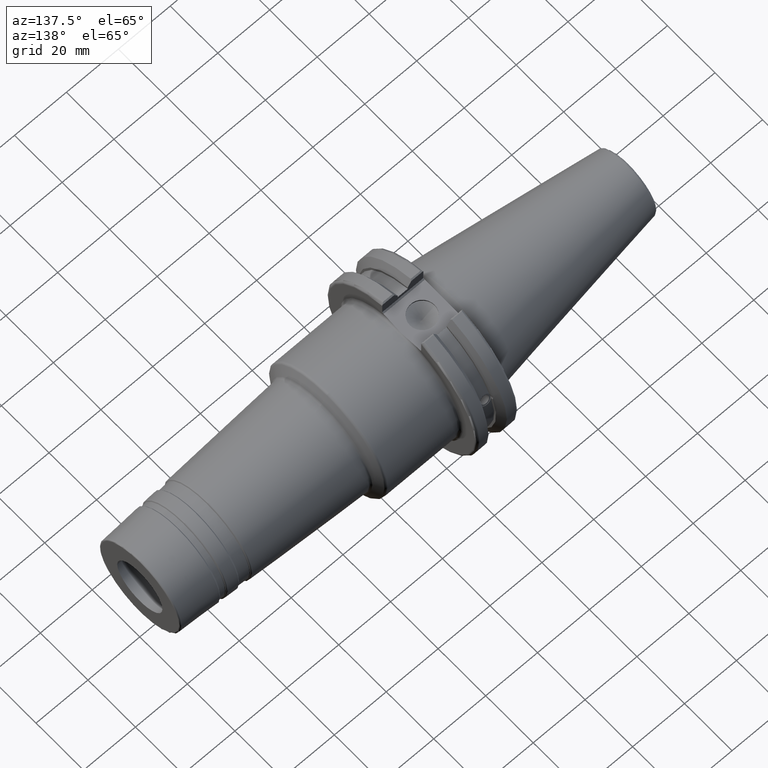
[diagram: clean part render]
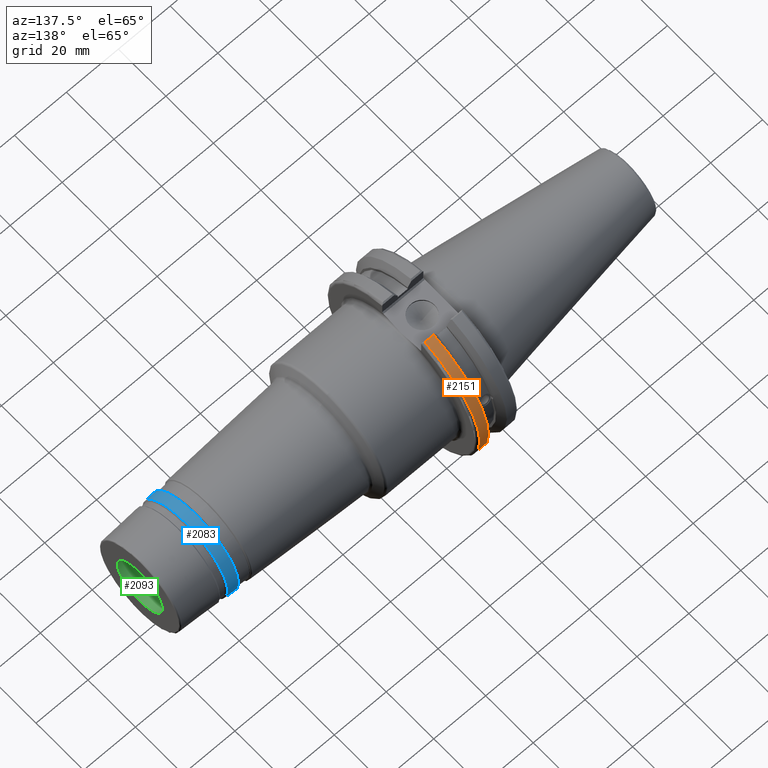
[diagram: same view with three faces highlighted in distinct colors, each labeled with its STEP entity id]
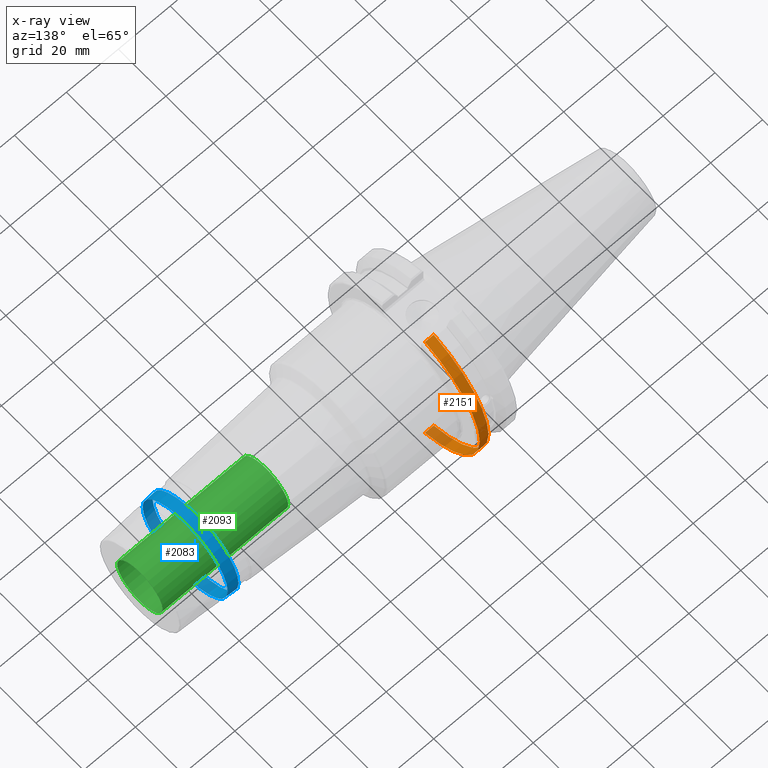
[diagram: x-ray of the same camera — body ghosted, the three highlighted faces saturated]
A machine part, auxiliary view with three faces highlighted in distinct colors.
The next image is the same camera in x-ray (body ghosted, the three faces saturated) — at least one of them is partly hidden behind the body in this view.
Their STEP definitions:

[orange] entity #2151 — the highlighted cylindrical surface (partial cylindrical patch) has radius 31.75 mm, axis along (1, 0, 0).
#262=FACE_OUTER_BOUND('',#381,.T.);
#381=EDGE_LOOP('',(#1941,#1942,#1943,#1944));
#467=LINE('',#3969,#566);
#493=LINE('',#4165,#592);
#566=VECTOR('',#3012,10.);
#592=VECTOR('',#3108,10.);
#742=CIRCLE('',#2416,31.75);
#757=CIRCLE('',#2454,31.75);
#967=VERTEX_POINT('',#3943);
#968=VERTEX_POINT('',#3952);
#970=VERTEX_POINT('',#3965);
#1003=VERTEX_POINT('',#4164);
#1268=EDGE_CURVE('',#967,#968,#742,.T.);
#1272=EDGE_CURVE('',#970,#967,#467,.T.);
#1330=EDGE_CURVE('',#968,#1003,#493,.T.);
#1332=EDGE_CURVE('',#970,#1003,#757,.T.);
#1941=ORIENTED_EDGE('',*,*,#1268,.F.);
#1942=ORIENTED_EDGE('',*,*,#1272,.F.);
#1943=ORIENTED_EDGE('',*,*,#1332,.T.);
#1944=ORIENTED_EDGE('',*,*,#1330,.F.);
#2057=CYLINDRICAL_SURFACE('',#2453,31.75);
#2151=ADVANCED_FACE('',(#262),#2057,.T.);
#2416=AXIS2_PLACEMENT_3D('',#3953,#3007,#3008);
#2453=AXIS2_PLACEMENT_3D('',#4169,#3109,#3110);
#2454=AXIS2_PLACEMENT_3D('',#4170,#3111,#3112);
#3007=DIRECTION('center_axis',(1.,0.,0.));
#3008=DIRECTION('ref_axis',(0.,1.,-6.12323399573677E-17));
#3012=DIRECTION('',(1.,0.,0.));
#3108=DIRECTION('',(-1.,0.,0.));
#3109=DIRECTION('center_axis',(1.,0.,0.));
#3110=DIRECTION('ref_axis',(0.,1.,0.));
#3111=DIRECTION('center_axis',(1.,0.,0.));
#3112=DIRECTION('ref_axis',(0.,0.,-1.));
#3943=CARTESIAN_POINT('',(18.05,8.67204822802685,-30.5427254764662));
#3952=CARTESIAN_POINT('',(18.05,8.67204822802685,30.5427254764662));
#3953=CARTESIAN_POINT('Origin',(18.05,0.,0.));
#3965=CARTESIAN_POINT('',(14.6602667690756,8.67204822802685,-30.5427254764662));
#3969=CARTESIAN_POINT('',(16.8551333845378,8.67204822802685,-30.5427254764662));
#4164=CARTESIAN_POINT('',(14.6602667690756,8.67204822802685,30.5427254764662));
#4165=CARTESIAN_POINT('',(16.8551333845378,8.67204822802685,30.5427254764662));
#4169=CARTESIAN_POINT('Origin',(16.8551333845378,0.,0.));
#4170=CARTESIAN_POINT('Origin',(14.6602667690756,0.,0.));

[blue] entity #2083 — the highlighted conical surface has half-angle 3 deg.
#111=CONICAL_SURFACE('',#2278,18.0202570867172,0.0523598775598298);
#194=FACE_OUTER_BOUND('',#303,.T.);
#303=EDGE_LOOP('',(#1501,#1502,#1503,#1504,#1505,#1506,#1507,#1508));
#414=LINE('',#3444,#513);
#513=VECTOR('',#2681,18.0202570867172);
#665=CIRCLE('',#2275,17.9166117566925);
#666=CIRCLE('',#2276,17.9166117566925);
#667=CIRCLE('',#2277,17.9166117566925);
#668=CIRCLE('',#2279,18.1239024167419);
#669=CIRCLE('',#2280,18.1239024167419);
#670=CIRCLE('',#2281,18.1239024167419);
#837=VERTEX_POINT('',#3435);
#838=VERTEX_POINT('',#3437);
#839=VERTEX_POINT('',#3439);
#840=VERTEX_POINT('',#3443);
#841=VERTEX_POINT('',#3445);
#842=VERTEX_POINT('',#3447);
#1097=EDGE_CURVE('',#837,#838,#665,.T.);
#1098=EDGE_CURVE('',#838,#839,#666,.T.);
#1099=EDGE_CURVE('',#839,#837,#667,.T.);
#1100=EDGE_CURVE('',#838,#840,#414,.T.);
#1101=EDGE_CURVE('',#841,#840,#668,.T.);
#1102=EDGE_CURVE('',#842,#841,#669,.T.);
#1103=EDGE_CURVE('',#840,#842,#670,.T.);
#1501=ORIENTED_EDGE('',*,*,#1099,.F.);
#1502=ORIENTED_EDGE('',*,*,#1098,.F.);
#1503=ORIENTED_EDGE('',*,*,#1100,.T.);
#1504=ORIENTED_EDGE('',*,*,#1101,.F.);
#1505=ORIENTED_EDGE('',*,*,#1102,.F.);
#1506=ORIENTED_EDGE('',*,*,#1103,.F.);
#1507=ORIENTED_EDGE('',*,*,#1100,.F.);
#1508=ORIENTED_EDGE('',*,*,#1097,.F.);
#2083=ADVANCED_FACE('',(#194),#111,.T.);
#2275=AXIS2_PLACEMENT_3D('',#3438,#2673,#2674);
#2276=AXIS2_PLACEMENT_3D('',#3440,#2675,#2676);
#2277=AXIS2_PLACEMENT_3D('',#3441,#2677,#2678);
#2278=AXIS2_PLACEMENT_3D('',#3442,#2679,#2680);
#2279=AXIS2_PLACEMENT_3D('',#3446,#2682,#2683);
#2280=AXIS2_PLACEMENT_3D('',#3448,#2684,#2685);
#2281=AXIS2_PLACEMENT_3D('',#3449,#2686,#2687);
#2673=DIRECTION('center_axis',(1.,0.,0.));
#2674=DIRECTION('ref_axis',(0.,-1.,3.06161699786838E-17));
#2675=DIRECTION('center_axis',(1.,0.,0.));
#2676=DIRECTION('ref_axis',(0.,-1.,3.06161699786838E-17));
#2677=DIRECTION('center_axis',(1.,0.,0.));
#2678=DIRECTION('ref_axis',(0.,-1.,3.06161699786838E-17));
#2679=DIRECTION('center_axis',(-1.,0.,0.));
#2680=DIRECTION('ref_axis',(0.,1.,0.));
#2681=DIRECTION('',(-0.998629534754574,-0.0523359562429437,-6.4093061293237E-18));
#2682=DIRECTION('center_axis',(-1.,0.,0.));
#2683=DIRECTION('ref_axis',(0.,-1.,3.06161699786838E-17));
#2684=DIRECTION('center_axis',(-1.,0.,0.));
#2685=DIRECTION('ref_axis',(0.,-1.,3.06161699786838E-17));
#2686=DIRECTION('center_axis',(-1.,0.,0.));
#2687=DIRECTION('ref_axis',(0.,-1.,3.06161699786838E-17));
#3435=CARTESIAN_POINT('',(102.510005780972,-2.19415212393993E-15,17.9166117566925));
#3437=CARTESIAN_POINT('',(102.510005780972,-17.9166117566925,-2.19415212393993E-15));
#3438=CARTESIAN_POINT('Origin',(102.510005780972,0.,-2.74269015492491E-15));
#3439=CARTESIAN_POINT('',(102.510005780972,17.9166117566925,-1.09707606196996E-15));
#3440=CARTESIAN_POINT('Origin',(102.510005780972,0.,-2.74269015492491E-15));
#3441=CARTESIAN_POINT('Origin',(102.510005780972,0.,-2.74269015492491E-15));
#3442=CARTESIAN_POINT('Origin',(100.532335071726,0.,0.));
#3443=CARTESIAN_POINT('',(98.5546643624796,-18.1239024167419,-2.2195379082722E-15));
#3444=CARTESIAN_POINT('',(100.532335071726,-18.0202570867172,-2.20684501610606E-15));
#3445=CARTESIAN_POINT('',(98.5546643624796,18.1239024167419,-5.54884477068049E-15));
#3446=CARTESIAN_POINT('Origin',(98.5546643624796,0.,-2.77442238534024E-15));
#3447=CARTESIAN_POINT('',(98.5546643624796,-2.2195379082722E-15,18.1239024167419));
#3448=CARTESIAN_POINT('Origin',(98.5546643624796,0.,-2.77442238534024E-15));
#3449=CARTESIAN_POINT('Origin',(98.5546643624796,0.,-2.77442238534024E-15));

[green] entity #2093 — the highlighted cylindrical surface (bore or boss wall) has radius 9.525 mm, axis along (1, 0, 0).
#204=FACE_OUTER_BOUND('',#313,.T.);
#313=EDGE_LOOP('',(#1576,#1577,#1578,#1579,#1580,#1581));
#425=LINE('',#3545,#524);
#524=VECTOR('',#2758,9.525);
#621=CIRCLE('',#2219,9.525);
#622=CIRCLE('',#2220,9.525);
#691=CIRCLE('',#2312,9.525);
#692=CIRCLE('',#2313,9.525);
#799=VERTEX_POINT('',#3336);
#800=VERTEX_POINT('',#3337);
#867=VERTEX_POINT('',#3544);
#868=VERTEX_POINT('',#3546);
#1047=EDGE_CURVE('',#799,#800,#621,.T.);
#1048=EDGE_CURVE('',#800,#799,#622,.T.);
#1137=EDGE_CURVE('',#800,#867,#425,.T.);
#1138=EDGE_CURVE('',#868,#867,#691,.T.);
#1139=EDGE_CURVE('',#867,#868,#692,.T.);
#1576=ORIENTED_EDGE('',*,*,#1047,.T.);
#1577=ORIENTED_EDGE('',*,*,#1137,.T.);
#1578=ORIENTED_EDGE('',*,*,#1138,.F.);
#1579=ORIENTED_EDGE('',*,*,#1139,.F.);
#1580=ORIENTED_EDGE('',*,*,#1137,.F.);
#1581=ORIENTED_EDGE('',*,*,#1048,.T.);
#2037=CYLINDRICAL_SURFACE('',#2311,9.525);
#2093=ADVANCED_FACE('',(#204),#2037,.F.);
#2219=AXIS2_PLACEMENT_3D('',#3338,#2555,#2556);
#2220=AXIS2_PLACEMENT_3D('',#3339,#2557,#2558);
#2311=AXIS2_PLACEMENT_3D('',#3543,#2756,#2757);
#2312=AXIS2_PLACEMENT_3D('',#3547,#2759,#2760);
#2313=AXIS2_PLACEMENT_3D('',#3548,#2761,#2762);
#2555=DIRECTION('center_axis',(1.,0.,0.));
#2556=DIRECTION('ref_axis',(0.,0.,-1.));
#2557=DIRECTION('center_axis',(1.,0.,0.));
#2558=DIRECTION('ref_axis',(0.,0.,-1.));
#2756=DIRECTION('center_axis',(1.,0.,0.));
#2757=DIRECTION('ref_axis',(0.,1.,0.));
#2758=DIRECTION('',(-1.,0.,0.));
#2759=DIRECTION('center_axis',(1.,0.,0.));
#2760=DIRECTION('ref_axis',(0.,0.,-1.));
#2761=DIRECTION('center_axis',(1.,0.,0.));
#2762=DIRECTION('ref_axis',(0.,0.,-1.));
#3336=CARTESIAN_POINT('',(120.,9.525,0.));
#3337=CARTESIAN_POINT('',(120.,-9.525,-1.16647607618785E-15));
#3338=CARTESIAN_POINT('Origin',(120.,0.,0.));
#3339=CARTESIAN_POINT('Origin',(120.,0.,0.));
#3543=CARTESIAN_POINT('Origin',(95.75,0.,0.));
#3544=CARTESIAN_POINT('',(71.5,-9.525,-1.16647607618785E-15));
#3545=CARTESIAN_POINT('',(95.75,-9.525,-1.16647607618785E-15));
#3546=CARTESIAN_POINT('',(71.5,9.525,0.));
#3547=CARTESIAN_POINT('Origin',(71.5,0.,0.));
#3548=CARTESIAN_POINT('Origin',(71.5,0.,0.));